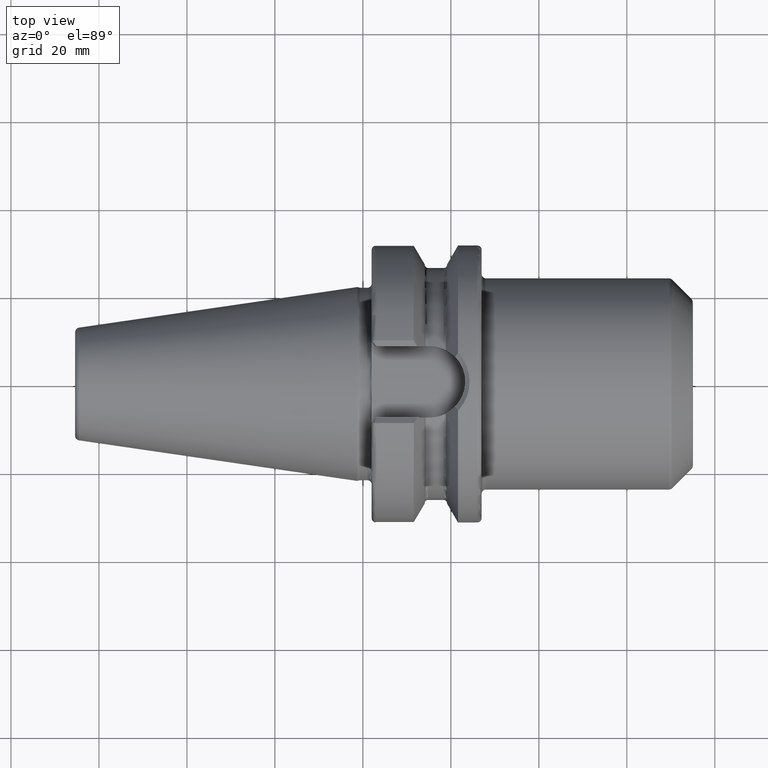
[diagram: clean part render]
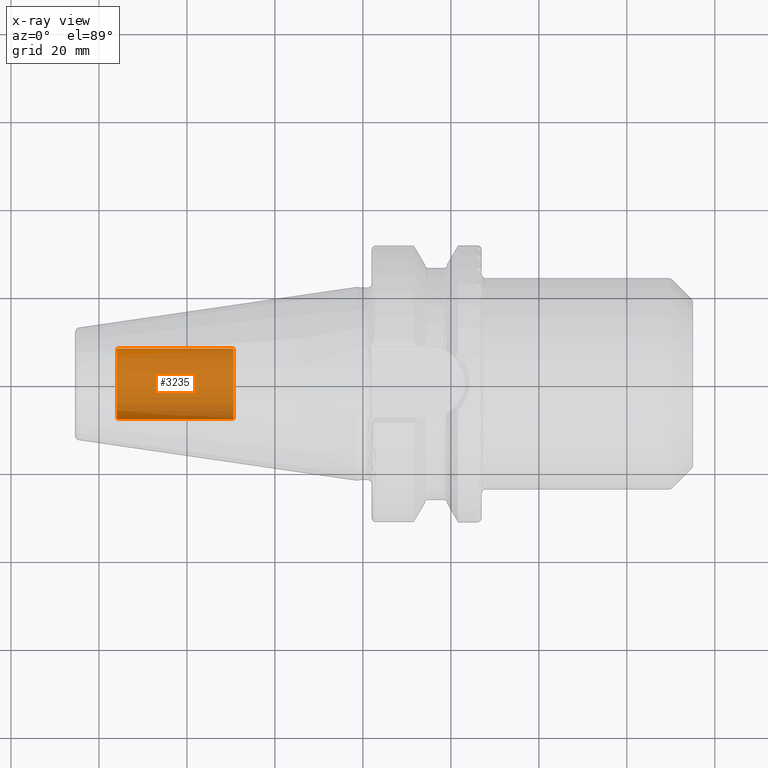
[diagram: x-ray — body ghosted, one internal face saturated and labeled with its STEP entity id]
A machine part, top view, then the same camera in x-ray: the body is ghosted and one INTERNAL B-rep face — a face not visible from any outside direction — is saturated and labeled: STEP entity #3235.
In plain terms, the highlighted cylindrical surface (edge-blend (fillet) strip) has radius 8.0028 mm, axis along (1, 0, 0).
Its self-contained STEP definition (entity closure, byte-faithful):
#3170=CARTESIAN_POINT('',(-5.595E1,0.E0,0.E0));
#3171=DIRECTION('',(-1.E0,0.E0,0.E0));
#3172=DIRECTION('',(0.E0,1.E0,0.E0));
#3173=AXIS2_PLACEMENT_3D('',#3170,#3171,#3172);
#3175=DIRECTION('',(1.E0,0.E0,0.E0));
#3176=VECTOR('',#3175,2.655E1);
#3177=CARTESIAN_POINT('',(-5.595E1,-8.00275E0,0.E0));
#3178=LINE('',#3177,#3176);
#3184=DIRECTION('',(1.E0,0.E0,0.E0));
#3185=VECTOR('',#3184,2.655E1);
#3186=CARTESIAN_POINT('',(-5.595E1,8.00275E0,0.E0));
#3187=LINE('',#3186,#3185);
#3193=CARTESIAN_POINT('',(-2.94E1,0.E0,0.E0));
#3194=DIRECTION('',(1.E0,0.E0,0.E0));
#3195=DIRECTION('',(0.E0,-1.E0,0.E0));
#3196=AXIS2_PLACEMENT_3D('',#3193,#3194,#3195);
#3208=CARTESIAN_POINT('',(-5.595E1,8.00275E0,0.E0));
#3209=CARTESIAN_POINT('',(-5.595E1,-8.00275E0,0.E0));
#3210=VERTEX_POINT('',#3208);
#3211=VERTEX_POINT('',#3209);
#3212=CARTESIAN_POINT('',(-2.94E1,8.00275E0,0.E0));
#3213=CARTESIAN_POINT('',(-2.94E1,-8.00275E0,0.E0));
#3214=VERTEX_POINT('',#3212);
#3215=VERTEX_POINT('',#3213);
#3220=CARTESIAN_POINT('',(-5.595E1,0.E0,0.E0));
#3221=DIRECTION('',(1.E0,0.E0,0.E0));
#3222=DIRECTION('',(0.E0,1.E0,0.E0));
#3223=AXIS2_PLACEMENT_3D('',#3220,#3221,#3222);
#3224=CYLINDRICAL_SURFACE('',#3223,8.00275E0);
#3226=ORIENTED_EDGE('',*,*,#3225,.T.);
#3228=ORIENTED_EDGE('',*,*,#3227,.T.);
#3230=ORIENTED_EDGE('',*,*,#3229,.T.);
#3232=ORIENTED_EDGE('',*,*,#3231,.F.);
#3233=EDGE_LOOP('',(#3226,#3228,#3230,#3232));
#3234=FACE_OUTER_BOUND('',#3233,.F.);
#3235=ADVANCED_FACE('',(#3234),#3224,.T.);
#3174=CIRCLE('',#3173,8.00275E0);
#3197=CIRCLE('',#3196,8.00275E0);
#3225=EDGE_CURVE('',#3210,#3211,#3174,.T.);
#3227=EDGE_CURVE('',#3211,#3215,#3178,.T.);
#3229=EDGE_CURVE('',#3215,#3214,#3197,.T.);
#3231=EDGE_CURVE('',#3210,#3214,#3187,.T.);